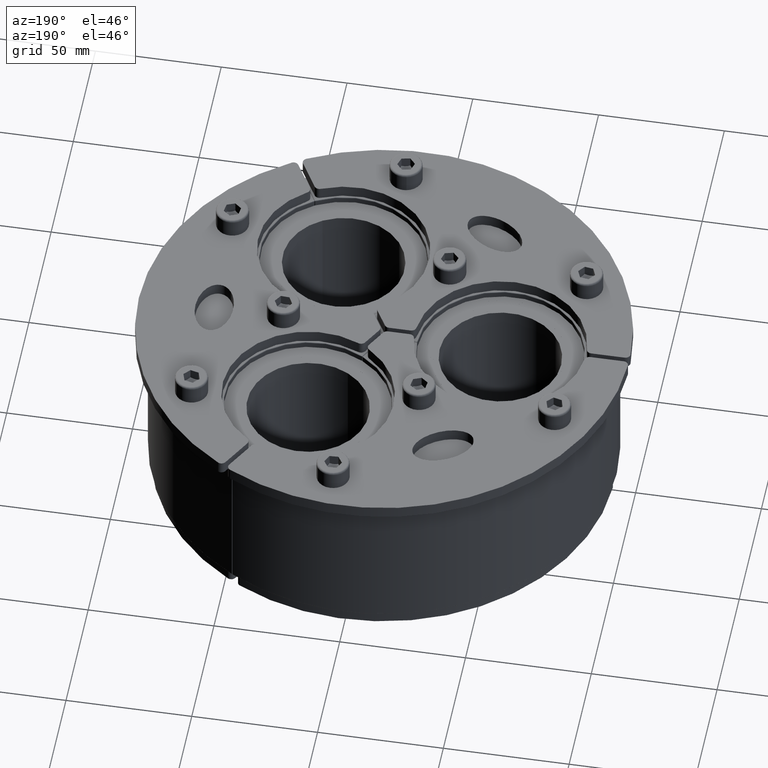
[diagram: clean part render]
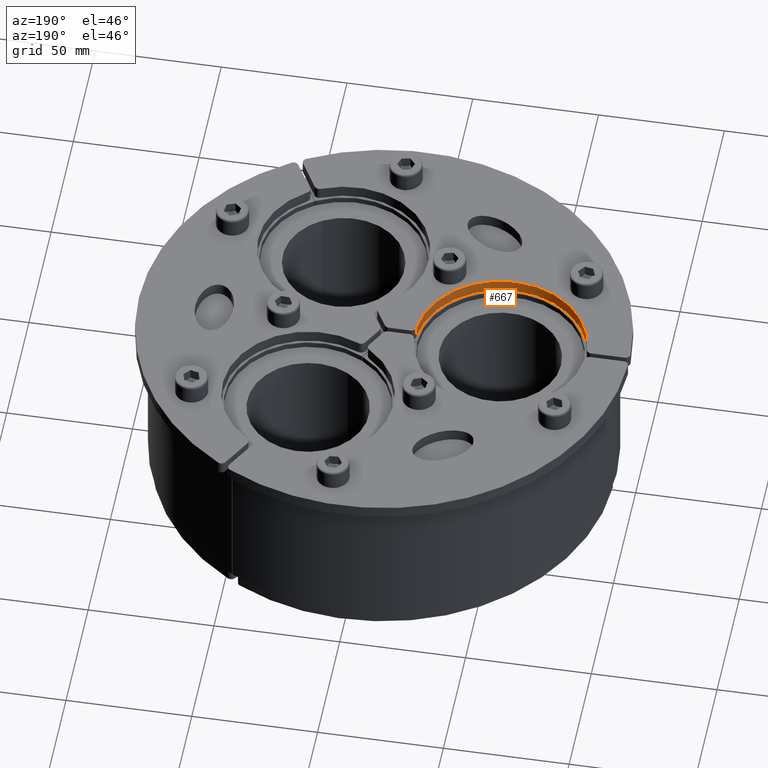
[diagram: same view with one face highlighted and labeled with its STEP entity id]
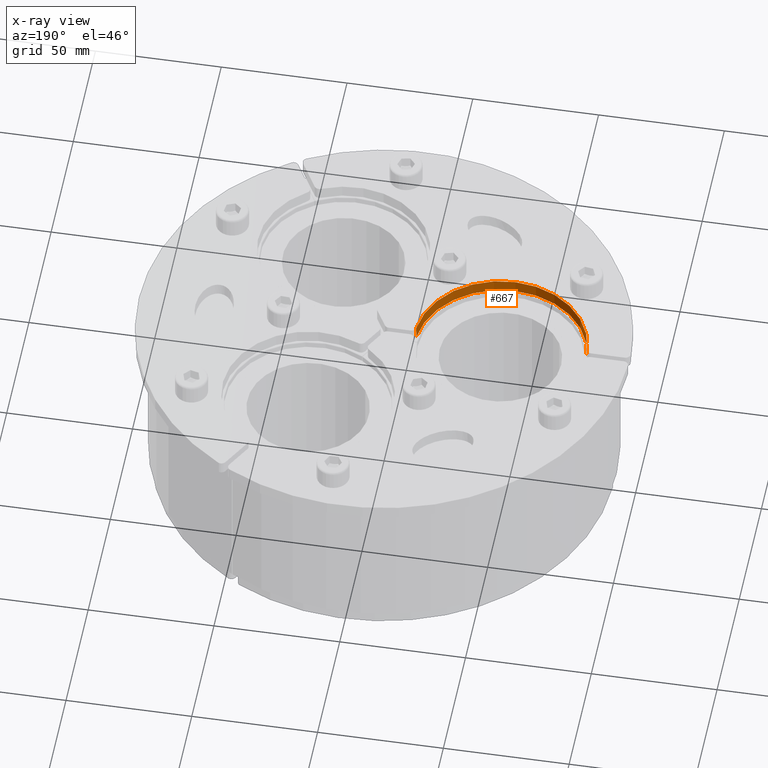
[diagram: x-ray of the same camera — body ghosted, the highlighted face saturated]
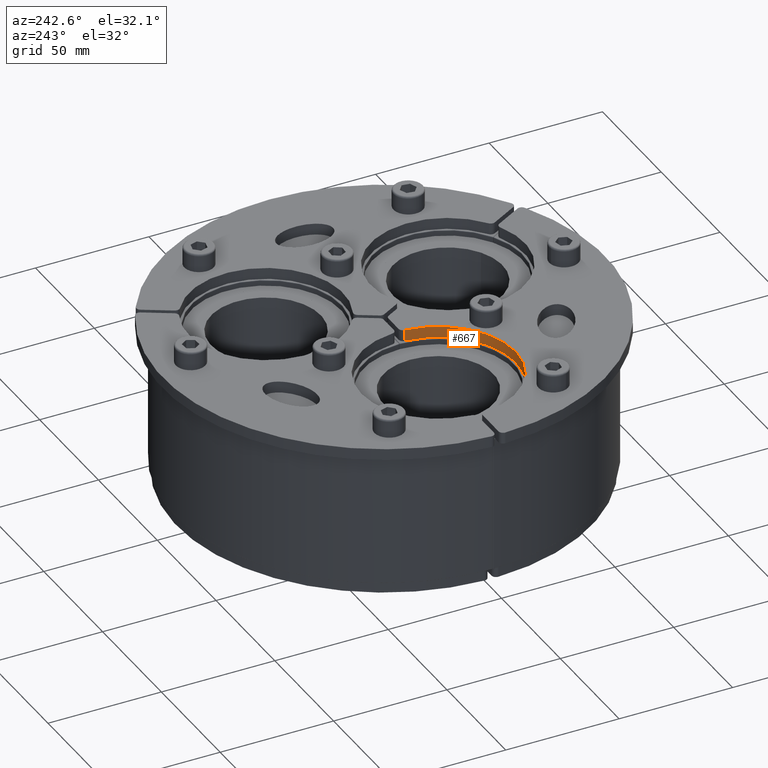
[diagram: same view with one face highlighted and labeled with its STEP entity id]
A machine part, auxiliary view. The second image highlights one B-rep face of the part: STEP entity #667.
The next image is the same camera in x-ray: the body ghosted, the highlighted face saturated — about 0% of this face is hidden behind the body in this view.
A second angle (auxiliary view) of the same face is appended — the face is thin or edge-on in the first view.
In plain terms, the highlighted cylindrical surface (partial cylindrical patch) has radius 34 mm, axis along (0, -0, 1).
Its self-contained STEP definition (entity closure, byte-faithful):
#297=CARTESIAN_POINT('',(-12.368261227879366,2.833333333333339,0.0));
#298=VERTEX_POINT('',#297);
#306=CARTESIAN_POINT('',(-80.131738772120627,2.833333333333333,0.0));
#307=VERTEX_POINT('',#306);
#308=CARTESIAN_POINT('',(-46.25,-1.387779E-016,0.0));
#309=DIRECTION('',(0.0,0.0,1.0));
#310=DIRECTION('',(-1.0,0.0,0.0));
#311=AXIS2_PLACEMENT_3D('',#308,#309,#310);
#312=CIRCLE('',#311,34.0);
#313=EDGE_CURVE('',#298,#307,#312,.T.);
#460=CARTESIAN_POINT('',(-80.131738772120627,2.833333333333333,5.0));
#461=VERTEX_POINT('',#460);
#469=CARTESIAN_POINT('',(-12.368261227879366,2.833333333333339,5.0));
#470=VERTEX_POINT('',#469);
#471=CARTESIAN_POINT('',(-46.25,-1.387779E-016,5.0));
#472=DIRECTION('',(0.0,0.0,-1.0));
#473=DIRECTION('',(-1.0,0.0,0.0));
#474=AXIS2_PLACEMENT_3D('',#471,#472,#473);
#475=CIRCLE('',#474,34.0);
#476=EDGE_CURVE('',#461,#470,#475,.T.);
#642=CARTESIAN_POINT('',(-12.368261227879369,2.833333333333338,5.0));
#643=DIRECTION('',(0.0,0.0,-1.0));
#644=VECTOR('',#643,5.0);
#645=LINE('',#642,#644);
#646=EDGE_CURVE('',#470,#298,#645,.T.);
#651=CARTESIAN_POINT('',(-46.25,-1.387779E-016,5.0));
#652=DIRECTION('',(0.0,0.0,-1.0));
#653=DIRECTION('',(-1.0,0.0,0.0));
#654=AXIS2_PLACEMENT_3D('',#651,#652,#653);
#655=CYLINDRICAL_SURFACE('',#654,34.0);
#656=ORIENTED_EDGE('',*,*,#646,.F.);
#657=ORIENTED_EDGE('',*,*,#476,.F.);
#658=CARTESIAN_POINT('',(-80.131738772120627,2.833333333333333,0.0));
#659=DIRECTION('',(0.0,0.0,1.0));
#660=VECTOR('',#659,5.0);
#661=LINE('',#658,#660);
#662=EDGE_CURVE('',#307,#461,#661,.T.);
#663=ORIENTED_EDGE('',*,*,#662,.F.);
#664=ORIENTED_EDGE('',*,*,#313,.F.);
#665=EDGE_LOOP('',(#656,#657,#663,#664));
#666=FACE_OUTER_BOUND('',#665,.T.);
#667=ADVANCED_FACE('',(#666),#655,.F.);